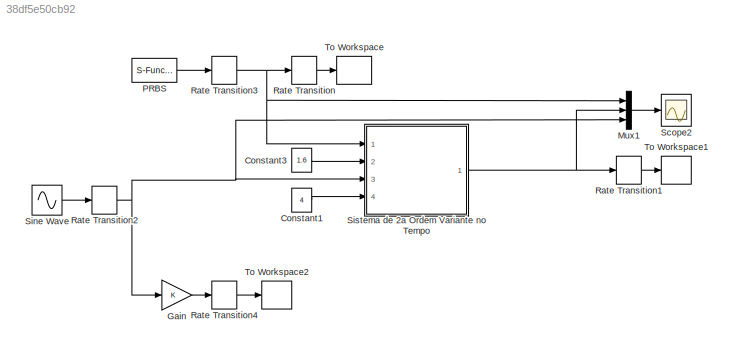
MODEL slx_38df5e50cb92
KIND model
CONFIG AbsTol = auto
CONFIG FixedStep = 0.005
CONFIG MaxStep = auto
CONFIG MinStep = auto
CONFIG RelTol = 1e-3
CONFIG SampleTimeConstraint = Unconstrained
CONFIG Solver = ode4
CONFIG SolverMode = Auto
CONFIG SolverName = ode4
CONFIG StartTime = 0.0
CONFIG StopTime = 200
BLOCK [Constant] Constant1
  Value = 4
BLOCK [Constant] Constant3
  Value = 1.6
BLOCK [Gain] Gain
  OutDataTypeStr = Inherit: Inherit via internal rule
  ParamDataTypeStr = Inherit: Inherit via internal rule
  SaturateOnIntegerOverflow = off
BLOCK [Mux] Mux1
  DisplayOption = bar
  Inputs = 3
  Ports = [3, 1]
BLOCK [S-Function] PRBS
  EnableBusSupport = off
  FunctionName = sf_prbs
  Parameters = K,N,Ts
  Ports = [0, 1]
  SFunctionDeploymentMode = off
BLOCK [RateTransition] Rate Transition
BLOCK [RateTransition] Rate Transition1
BLOCK [RateTransition] Rate Transition2
BLOCK [RateTransition] Rate Transition3
BLOCK [RateTransition] Rate Transition4
  X0 = 0.05
BLOCK [Scope] Scope2
  DataFormat = StructureWithTime
  Decimation = 1
  Grid = on
  LimitDataPoints = off
  MaxDataPoints = 5000
  NumInputPorts = 1
  Ports = [1]
  SampleInput = off
  SampleTime = -1
  SaveName = ScopeData2
  SaveToWorkspace = off
  ShowLegends = off
  TickLabels = OneTimeTick
  TimeRange = 1500
  YMax = 1.40008
  YMin = -1.40205
  ZoomMode = on
BLOCK [Sin] Sine Wave
  Amplitude = 0.4
  Bias = 0.5
  Frequency = 0.05
  Ports = [0, 1]
  SampleTime = 0
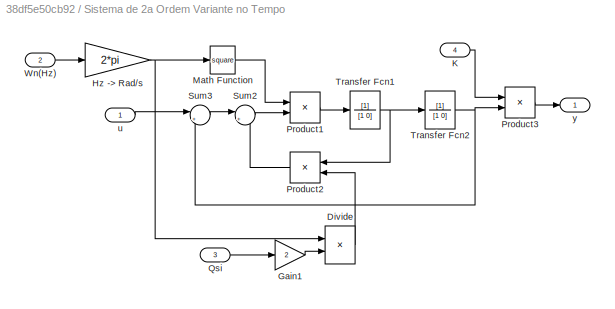
BLOCK [SubSystem] Sistema de 2a Ordem Variante no Tempo
  Ports = [4, 1]
  RequestExecContextInheritance = off
  Variant = off
BLOCK [Product] Sistema de 2a Ordem Variante no Tempo/Divide
  InputSameDT = off
  Inputs = /*
  OutDataTypeStr = Inherit: Inherit via internal rule
  Ports = [2, 1]
  RndMeth = Floor
  SaturateOnIntegerOverflow = off
BLOCK [Gain] Sistema de 2a Ordem Variante no Tempo/Gain1
  Gain = 2
  OutDataTypeStr = Inherit: Inherit via internal rule
  ParamDataTypeStr = Inherit: Inherit via internal rule
  SaturateOnIntegerOverflow = off
BLOCK [Gain] Sistema de 2a Ordem Variante no Tempo/Hz -> Rad//s
  Gain = 2*pi
  OutDataTypeStr = Inherit: Inherit via internal rule
  ParamDataTypeStr = Inherit: Inherit via internal rule
  SaturateOnIntegerOverflow = off
BLOCK [Inport] Sistema de 2a Ordem Variante no Tempo/K
  IconDisplay = Port number
  Port = 4
BLOCK [Math] Sistema de 2a Ordem Variante no Tempo/Math Function
  Operator = square
  Ports = [1, 1]
BLOCK [Product] Sistema de 2a Ordem Variante no Tempo/Product1
  InputSameDT = off
  OutDataTypeStr = Inherit: Inherit via internal rule
  Ports = [2, 1]
  SaturateOnIntegerOverflow = off
BLOCK [Product] Sistema de 2a Ordem Variante no Tempo/Product2
  InputSameDT = off
  OutDataTypeStr = Inherit: Inherit via internal rule
  Ports = [2, 1]
  SaturateOnIntegerOverflow = off
BLOCK [Product] Sistema de 2a Ordem Variante no Tempo/Product3
  InputSameDT = off
  OutDataTypeStr = Inherit: Inherit via internal rule
  Ports = [2, 1]
  SaturateOnIntegerOverflow = off
BLOCK [Inport] Sistema de 2a Ordem Variante no Tempo/Qsi
  IconDisplay = Port number
  Port = 3
BLOCK [Sum] Sistema de 2a Ordem Variante no Tempo/Sum2
  IconShape = round
  InputSameDT = off
  Inputs = |+-
  OutDataTypeStr = Inherit: Inherit via internal rule
  Ports = [2, 1]
  SaturateOnIntegerOverflow = off
BLOCK [Sum] Sistema de 2a Ordem Variante no Tempo/Sum3
  IconShape = round
  InputSameDT = off
  Inputs = |+-
  OutDataTypeStr = Inherit: Inherit via internal rule
  Ports = [2, 1]
  SaturateOnIntegerOverflow = off
BLOCK [TransferFcn] Sistema de 2a Ordem Variante no Tempo/Transfer Fcn1
  Denominator = [1 0]
BLOCK [TransferFcn] Sistema de 2a Ordem Variante no Tempo/Transfer Fcn2
  Denominator = [1 0]
BLOCK [Inport] Sistema de 2a Ordem Variante no Tempo/Wn(Hz)
  IconDisplay = Port number
  Port = 2
BLOCK [Inport] Sistema de 2a Ordem Variante no Tempo/u
  IconDisplay = Port number
BLOCK [Outport] Sistema de 2a Ordem Variante no Tempo/y
  IconDisplay = Port number
BLOCK [ToWorkspace] To Workspace
  MaxDataPoints = inf
  Ports = [1]
  SampleTime = 0.05
  VariableName = u
BLOCK [ToWorkspace] To Workspace1
  MaxDataPoints = inf
  Ports = [1]
  SampleTime = 0.05
  VariableName = y
BLOCK [ToWorkspace] To Workspace2
  MaxDataPoints = inf
  Ports = [1]
  SampleTime = 0.05
  VariableName = p
LINE Constant1:1 -> Sistema de 2a Ordem Variante no Tempo:4
LINE Constant3:1 -> Sistema de 2a Ordem Variante no Tempo:2
LINE Gain:1 -> Rate Transition4:1
LINE Mux1:1 -> Scope2:1
LINE PRBS:1 -> Rate Transition3:1
LINE Rate Transition1:1 -> To Workspace1:1
NET Rate Transition2:1 -> Gain:1, Mux1:3, Sistema de 2a Ordem Variante no Tempo:3
NET Rate Transition3:1 -> Mux1:1, Rate Transition:1, Sistema de 2a Ordem Variante no Tempo:1
LINE Rate Transition4:1 -> To Workspace2:1
LINE Rate Transition:1 -> To Workspace:1
LINE Sine Wave:1 -> Rate Transition2:1
LINE Sistema de 2a Ordem Variante no Tempo/Divide:1 -> Sistema de 2a Ordem Variante no Tempo/Product2:2
LINE Sistema de 2a Ordem Variante no Tempo/Gain1:1 -> Sistema de 2a Ordem Variante no Tempo/Divide:2
NET Sistema de 2a Ordem Variante no Tempo/Hz -> Rad//s:1 -> Sistema de 2a Ordem Variante no Tempo/Divide:1, Sistema de 2a Ordem Variante no Tempo/Math Function:1
LINE Sistema de 2a Ordem Variante no Tempo/K:1 -> Sistema de 2a Ordem Variante no Tempo/Product3:1
LINE Sistema de 2a Ordem Variante no Tempo/Math Function:1 -> Sistema de 2a Ordem Variante no Tempo/Product1:1
LINE Sistema de 2a Ordem Variante no Tempo/Product1:1 -> Sistema de 2a Ordem Variante no Tempo/Transfer Fcn1:1
LINE Sistema de 2a Ordem Variante no Tempo/Product2:1 -> Sistema de 2a Ordem Variante no Tempo/Sum2:2
LINE Sistema de 2a Ordem Variante no Tempo/Product3:1 -> Sistema de 2a Ordem Variante no Tempo/y:1
LINE Sistema de 2a Ordem Variante no Tempo/Qsi:1 -> Sistema de 2a Ordem Variante no Tempo/Gain1:1
LINE Sistema de 2a Ordem Variante no Tempo/Sum2:1 -> Sistema de 2a Ordem Variante no Tempo/Product1:2
LINE Sistema de 2a Ordem Variante no Tempo/Sum3:1 -> Sistema de 2a Ordem Variante no Tempo/Sum2:1
NET Sistema de 2a Ordem Variante no Tempo/Transfer Fcn1:1 -> Sistema de 2a Ordem Variante no Tempo/Product2:1, Sistema de 2a Ordem Variante no Tempo/Transfer Fcn2:1
NET Sistema de 2a Ordem Variante no Tempo/Transfer Fcn2:1 -> Sistema de 2a Ordem Variante no Tempo/Product3:2, Sistema de 2a Ordem Variante no Tempo/Sum3:2
LINE Sistema de 2a Ordem Variante no Tempo/Wn(Hz):1 -> Sistema de 2a Ordem Variante no Tempo/Hz -> Rad//s:1
LINE Sistema de 2a Ordem Variante no Tempo/u:1 -> Sistema de 2a Ordem Variante no Tempo/Sum3:1
NET Sistema de 2a Ordem Variante no Tempo:1 -> Mux1:2, Rate Transition1:1
note: NET lines group one-source signal fan-out (src -> all destinations, sorted); 1:1 wires keep LINE
